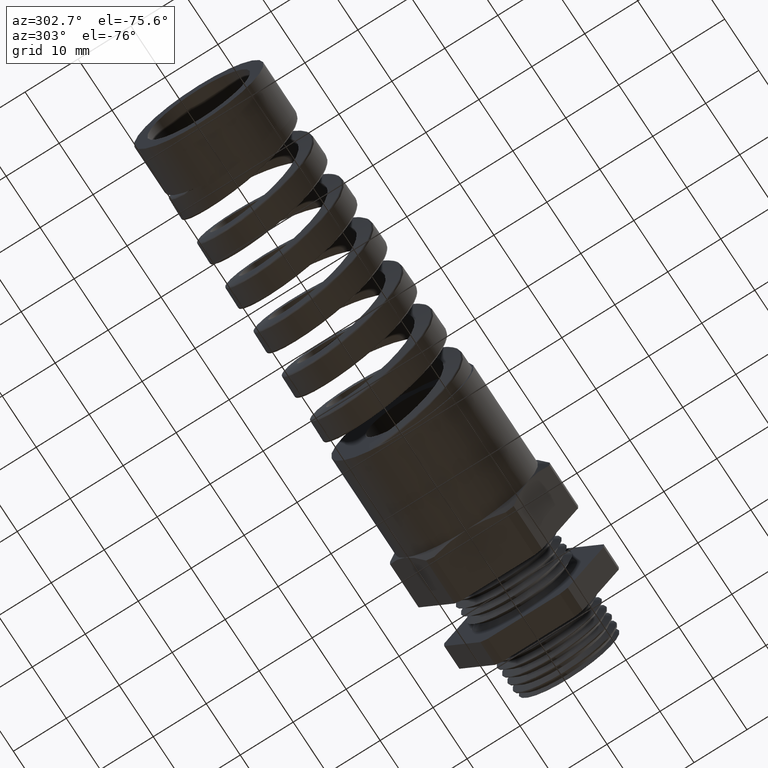
[diagram: clean part render]
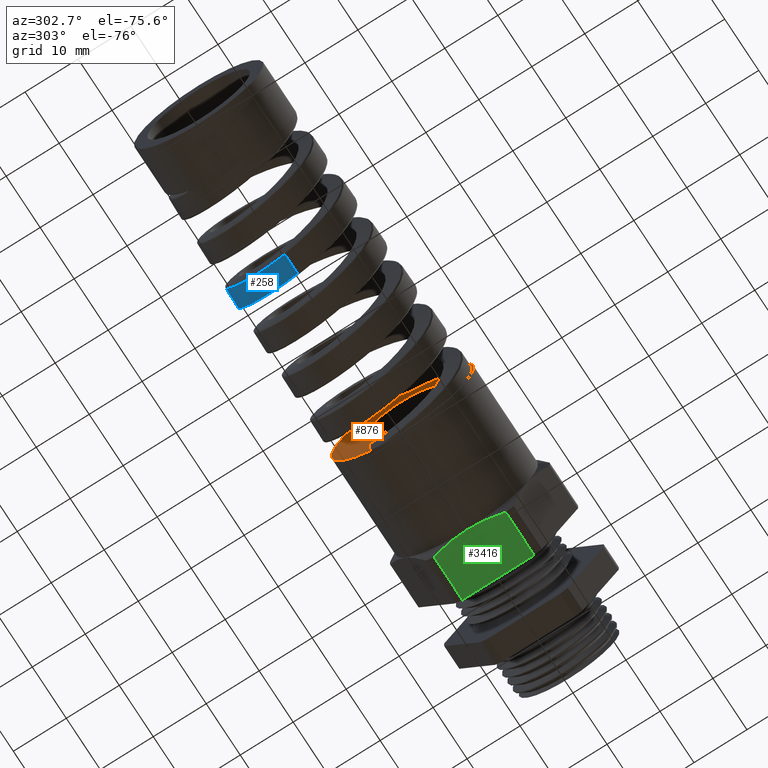
[diagram: same view with three faces highlighted in distinct colors, each labeled with its STEP entity id]
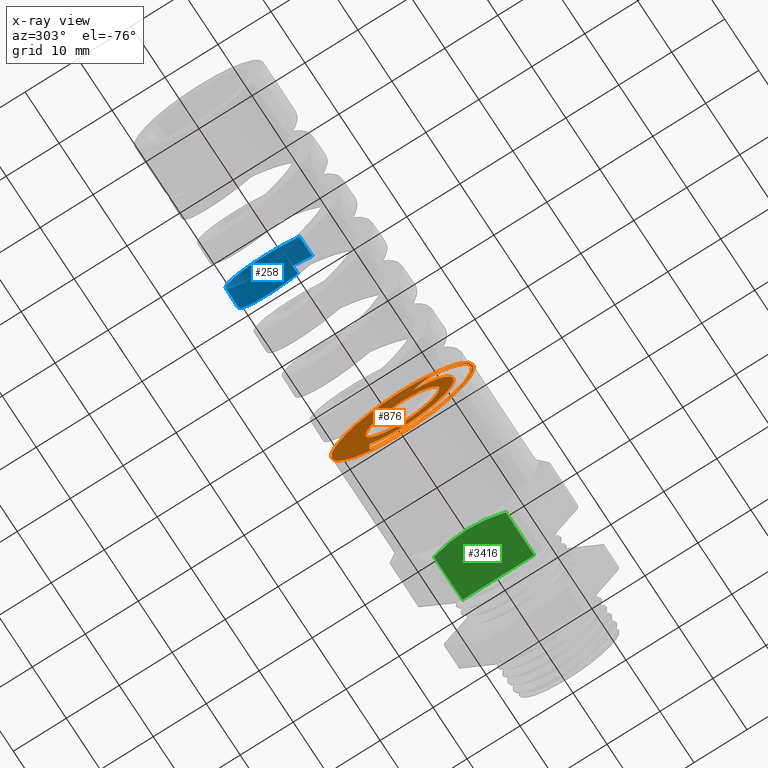
[diagram: x-ray of the same camera — body ghosted, the three highlighted faces saturated]
A machine part, auxiliary view with three faces highlighted in distinct colors.
The next image is the same camera in x-ray (body ghosted, the three faces saturated) — at least one of them is partly hidden behind the body in this view.
Their STEP definitions:

[orange] entity #876 — the highlighted planar face has unit normal (-1, 0, 0).
#290 = VERTEX_POINT ( 'NONE', #1920 ) ;
#293 = EDGE_CURVE ( 'NONE', #290, #7262, #1989, .T. ) ;
#414 = VERTEX_POINT ( 'NONE', #2909 ) ;
#417 = EDGE_CURVE ( 'NONE', #418, #414, #2934, .T. ) ;
#418 = VERTEX_POINT ( 'NONE', #2929 ) ;
#592 = EDGE_CURVE ( 'NONE', #3433, #1147, #3796, .T. ) ;
#648 = EDGE_CURVE ( 'NONE', #1116, #1114, #3854, .T. ) ;
#797 = EDGE_LOOP ( 'NONE', ( #798, #799 ) ) ;
#798 = ORIENTED_EDGE ( 'NONE', *, *, #1105, .T. ) ;
#799 = ORIENTED_EDGE ( 'NONE', *, *, #648, .T. ) ;
#800 = EDGE_LOOP ( 'NONE', ( #801, #804, #861, #862, #865, #868, #870, #871 ) ) ;
#801 = ORIENTED_EDGE ( 'NONE', *, *, #802, .F. ) ;
#802 = EDGE_CURVE ( 'NONE', #803, #7268, #4034, .T. ) ;
#803 = VERTEX_POINT ( 'NONE', #4033 ) ;
#804 = ORIENTED_EDGE ( 'NONE', *, *, #805, .T. ) ;
#805 = EDGE_CURVE ( 'NONE', #803, #418, #4086, .T. ) ;
#817 = EDGE_LOOP ( 'NONE', ( #877, #878 ) ) ;
#861 = ORIENTED_EDGE ( 'NONE', *, *, #417, .T. ) ;
#862 = ORIENTED_EDGE ( 'NONE', *, *, #863, .T. ) ;
#863 = EDGE_CURVE ( 'NONE', #414, #864, #4593, .T. ) ;
#864 = VERTEX_POINT ( 'NONE', #4588 ) ;
#865 = ORIENTED_EDGE ( 'NONE', *, *, #866, .T. ) ;
#866 = EDGE_CURVE ( 'NONE', #864, #867, #4586, .T. ) ;
#867 = VERTEX_POINT ( 'NONE', #4587 ) ;
#868 = ORIENTED_EDGE ( 'NONE', *, *, #869, .F. ) ;
#869 = EDGE_CURVE ( 'NONE', #290, #867, #4585, .T. ) ;
#870 = ORIENTED_EDGE ( 'NONE', *, *, #293, .T. ) ;
#871 = ORIENTED_EDGE ( 'NONE', *, *, #7269, .T. ) ;
#876 = ADVANCED_FACE ( 'NONE', ( #4623, #4622, #4621 ), #4618, .T. ) ;
#877 = ORIENTED_EDGE ( 'NONE', *, *, #592, .F. ) ;
#878 = ORIENTED_EDGE ( 'NONE', *, *, #3426, .F. ) ;
#1105 = EDGE_CURVE ( 'NONE', #1114, #1116, #10179, .T. ) ;
#1114 = VERTEX_POINT ( 'NONE', #10152 ) ;
#1116 = VERTEX_POINT ( 'NONE', #10151 ) ;
#1147 = VERTEX_POINT ( 'NONE', #10183 ) ;
#1920 = CARTESIAN_POINT ( 'NONE',  ( -1.581476290660619900, 0.2439768108765365500, -0.2939833847127876800 ) ) ;
#1976 = DIRECTION ( 'NONE',  ( 0.0000000000000000000, 0.0000000000000000000, 1.000000000000000000 ) ) ;
#1986 = DIRECTION ( 'NONE',  ( -1.000000000000000000, 0.0000000000000000000, 0.0000000000000000000 ) ) ;
#1987 = CARTESIAN_POINT ( 'NONE',  ( -1.581476290660620300, 0.0000000000000000000, 0.0000000000000000000 ) ) ;
#1988 = AXIS2_PLACEMENT_3D ( 'NONE', #1987, #1986, #1976 ) ;
#1989 = CIRCLE ( 'NONE', #1988, 0.3820352270837504300 ) ;
#2909 = CARTESIAN_POINT ( 'NONE',  ( -1.581476290660620300, 0.0000000000000000000, -0.5170138455414643500 ) ) ;
#2929 = CARTESIAN_POINT ( 'NONE',  ( -1.581476290660620300, -0.2878362359245722500, 0.4294806372473002900 ) ) ;
#2930 = DIRECTION ( 'NONE',  ( 0.0000000000000000000, 0.0000000000000000000, 1.000000000000000000 ) ) ;
#2931 = DIRECTION ( 'NONE',  ( 1.000000000000000000, 0.0000000000000000000, 0.0000000000000000000 ) ) ;
#2932 = CARTESIAN_POINT ( 'NONE',  ( -1.581476290660620300, 0.0000000000000000000, 0.0000000000000000000 ) ) ;
#2933 = AXIS2_PLACEMENT_3D ( 'NONE', #2932, #2931, #2930 ) ;
#2934 = CIRCLE ( 'NONE', #2933, 0.5170138455414643500 ) ;
#3426 = EDGE_CURVE ( 'NONE', #1147, #3433, #7901, .T. ) ;
#3433 = VERTEX_POINT ( 'NONE', #7887 ) ;
#3792 = DIRECTION ( 'NONE',  ( 0.0000000000000000000, 0.0000000000000000000, 1.000000000000000000 ) ) ;
#3793 = DIRECTION ( 'NONE',  ( -1.000000000000000000, 0.0000000000000000000, 0.0000000000000000000 ) ) ;
#3794 = CARTESIAN_POINT ( 'NONE',  ( -1.581476290660620300, 0.0000000000000000000, 0.0000000000000000000 ) ) ;
#3795 = AXIS2_PLACEMENT_3D ( 'NONE', #3794, #3793, #3792 ) ;
#3796 = CIRCLE ( 'NONE', #3795, 0.2750000000000000200 ) ;
#3850 = DIRECTION ( 'NONE',  ( 0.0000000000000000000, 0.0000000000000000000, 1.000000000000000000 ) ) ;
#3851 = DIRECTION ( 'NONE',  ( -1.000000000000000000, 0.0000000000000000000, 0.0000000000000000000 ) ) ;
#3852 = CARTESIAN_POINT ( 'NONE',  ( -1.581476290660620300, 0.0000000000000000000, 0.0000000000000000000 ) ) ;
#3853 = AXIS2_PLACEMENT_3D ( 'NONE', #3852, #3851, #3850 ) ;
#3854 = CIRCLE ( 'NONE', #3853, 0.5299999999999999200 ) ;
#4027 = CARTESIAN_POINT ( 'NONE',  ( -1.581476290660620300, -0.08011283778685926400, 0.3735409588715394900 ) ) ;
#4028 = CARTESIAN_POINT ( 'NONE',  ( -1.581476290660619900, -0.09805496664336703400, 0.3924235497094827300 ) ) ;
#4029 = CARTESIAN_POINT ( 'NONE',  ( -1.581476290660620100, -0.1174194812276809200, 0.4093455164549105200 ) ) ;
#4030 = CARTESIAN_POINT ( 'NONE',  ( -1.581476290660619900, -0.1586306682812588500, 0.4397680302453812500 ) ) ;
#4031 = CARTESIAN_POINT ( 'NONE',  ( -1.581476290660620600, -0.1804812060211865900, 0.4532632493806746400 ) ) ;
#4032 = CARTESIAN_POINT ( 'NONE',  ( -1.581476290660620300, -0.2035264114715549200, 0.4651117321561662500 ) ) ;
#4033 = CARTESIAN_POINT ( 'NONE',  ( -1.581476290660620300, -0.2035264114715549200, 0.4651117321561662500 ) ) ;
#4034 = B_SPLINE_CURVE_WITH_KNOTS ( 'NONE', 3,
 ( #4032, #4031, #4030, #4029, #4028, #4027 ),
 .UNSPECIFIED., .F., .F.,
 ( 4, 2, 4 ),
 ( 0.0003023189019073264800, 0.002253883634336859000, 0.004205448366766391200 ),
 .UNSPECIFIED. ) ;
#4069 = CARTESIAN_POINT ( 'NONE',  ( -1.581476290660620300, -0.2878362359245722500, 0.4294806372473002900 ) ) ;
#4070 = CARTESIAN_POINT ( 'NONE',  ( -1.581476290660619900, -0.2749755471508566500, 0.4380998203423221400 ) ) ;
#4071 = CARTESIAN_POINT ( 'NONE',  ( -1.581476290660620600, -0.2615777167441957800, 0.4456901387269754900 ) ) ;
#4072 = CARTESIAN_POINT ( 'NONE',  ( -1.581476290660620300, -0.2406053994859072800, 0.4553985078565002100 ) ) ;
#4073 = CARTESIAN_POINT ( 'NONE',  ( -1.581476290660621200, -0.2334437524205655900, 0.4583694052105787300 ) ) ;
#4074 = CARTESIAN_POINT ( 'NONE',  ( -1.581476290660620100, -0.2224599632310773900, 0.4621299269364348400 ) ) ;
#4075 = CARTESIAN_POINT ( 'NONE',  ( -1.581476290660620300, -0.2187658228172727500, 0.4632712828768676400 ) ) ;
#4076 = CARTESIAN_POINT ( 'NONE',  ( -1.581476290660620300, -0.2131233264642752900, 0.4646378106417991000 ) ) ;
#4077 = CARTESIAN_POINT ( 'NONE',  ( -1.581476290660620100, -0.2112182180343280000, 0.4650413015481507100 ) ) ;
#4078 = CARTESIAN_POINT ( 'NONE',  ( -1.581476290660620300, -0.2083318138519092100, 0.4654355307481730100 ) ) ;
#4079 = CARTESIAN_POINT ( 'NONE',  ( -1.581476290660620600, -0.2073672283011685800, 0.4655330223194320500 ) ) ;
#4080 = CARTESIAN_POINT ( 'NONE',  ( -1.581476290660620300, -0.2054261782288179000, 0.4655636064762560500 ) ) ;
#4081 = CARTESIAN_POINT ( 'NONE',  ( -1.581476290660619500, -0.2044146998008145000, 0.4655684375212607600 ) ) ;
#4082 = CARTESIAN_POINT ( 'NONE',  ( -1.581476290660620300, -0.2035264114715549200, 0.4651117321561662500 ) ) ;
#4086 = B_SPLINE_CURVE_WITH_KNOTS ( 'NONE', 3,
 ( #4082, #4081, #4080, #4079, #4078, #4077, #4076, #4075, #4074, #4073, #4072, #4071, #4070, #4069 ),
 .UNSPECIFIED., .F., .F.,
 ( 4, 2, 2, 2, 2, 2, 4 ),
 ( 2.609303217328850300E-017, 7.404749739776534100E-005, 0.0001480949947955046100, 0.0002961899895909805400, 0.0005923799791819312600, 0.001184759958363834800, 0.002369519916727640000 ),
 .UNSPECIFIED. ) ;
#4565 = CARTESIAN_POINT ( 'NONE',  ( -1.581476290660620600, 0.2445930851603495500, -0.4226412966956376000 ) ) ;
#4566 = CARTESIAN_POINT ( 'NONE',  ( -1.581476290660620300, 0.2476079300222934800, -0.3967413439239729200 ) ) ;
#4567 = CARTESIAN_POINT ( 'NONE',  ( -1.581476290660621000, 0.2491756876844468400, -0.3452950546097943700 ) ) ;
#4568 = CARTESIAN_POINT ( 'NONE',  ( -1.581476290660619000, 0.2477838272508631800, -0.3196151953929073400 ) ) ;
#4569 = CARTESIAN_POINT ( 'NONE',  ( -1.581476290660619900, 0.2439768108765365500, -0.2939833847127876800 ) ) ;
#4570 = CARTESIAN_POINT ( 'NONE',  ( -1.581476290660620600, 0.2395947729159085500, -0.4479899465159873400 ) ) ;
#4571 = CARTESIAN_POINT ( 'NONE',  ( -1.581476290660620300, 0.2393978166124937900, -0.4489887989527761000 ) ) ;
#4572 = CARTESIAN_POINT ( 'NONE',  ( -1.581476290660620300, 0.2387443856755272800, -0.4497935887819438600 ) ) ;
#4573 = CARTESIAN_POINT ( 'NONE',  ( -1.581476290660620100, 0.2374701702775427200, -0.4513323751275263300 ) ) ;
#4574 = CARTESIAN_POINT ( 'NONE',  ( -1.581476290660620600, 0.2367668135720901700, -0.4520481940536040800 ) ) ;
#4575 = CARTESIAN_POINT ( 'NONE',  ( -1.581476290660620300, 0.2345930094758134100, -0.4541116560727979100 ) ) ;
#4576 = CARTESIAN_POINT ( 'NONE',  ( -1.581476290660621000, 0.2330440772027471700, -0.4553825208635158800 ) ) ;
#4577 = CARTESIAN_POINT ( 'NONE',  ( -1.581476290660620300, 0.2282981278049989700, -0.4590447653421673200 ) ) ;
#4578 = CARTESIAN_POINT ( 'NONE',  ( -1.581476290660620100, 0.2249812029482286800, -0.4612857056665591300 ) ) ;
#4579 = CARTESIAN_POINT ( 'NONE',  ( -1.581476290660620600, 0.2148458321704201900, -0.4676898152625083000 ) ) ;
#4580 = CARTESIAN_POINT ( 'NONE',  ( -1.581476290660620300, 0.2078214009036204200, -0.4715219357451060400 ) ) ;
#4581 = CARTESIAN_POINT ( 'NONE',  ( -1.581476290660620100, 0.1863209287074172900, -0.4821457008317268100 ) ) ;
#4582 = CARTESIAN_POINT ( 'NONE',  ( -1.581476290660620300, 0.1714300096581261600, -0.4880273622731625700 ) ) ;
#4583 = CARTESIAN_POINT ( 'NONE',  ( -1.581476290660620300, 0.1561883609519543200, -0.4928574970361262500 ) ) ;
#4585 = B_SPLINE_CURVE_WITH_KNOTS ( 'NONE', 3,
 ( #4569, #4568, #4567, #4566, #4565, #4625 ),
 .UNSPECIFIED., .F., .F.,
 ( 4, 2, 4 ),
 ( 0.0001882138518751078700, 0.002146741590613274600, 0.004105269329351441900 ),
 .UNSPECIFIED. ) ;
#4586 = B_SPLINE_CURVE_WITH_KNOTS ( 'NONE', 3,
 ( #4583, #4582, #4581, #4580, #4579, #4578, #4577, #4576, #4575, #4574, #4573, #4572, #4571, #4570 ),
 .UNSPECIFIED., .F., .F.,
 ( 4, 2, 2, 2, 2, 2, 4 ),
 ( 0.0000000000000000000, 0.001217786265975207600, 0.001826679398962811500, 0.002131125965456612400, 0.002283349248703513600, 0.002359460890326963900, 0.002435572531950414300 ),
 .UNSPECIFIED. ) ;
#4587 = CARTESIAN_POINT ( 'NONE',  ( -1.581476290660620600, 0.2395947729159085500, -0.4479899465159873400 ) ) ;
#4588 = CARTESIAN_POINT ( 'NONE',  ( -1.581476290660620300, 0.1561883609519543200, -0.4928574970361262500 ) ) ;
#4589 = DIRECTION ( 'NONE',  ( 0.0000000000000000000, 0.0000000000000000000, 1.000000000000000000 ) ) ;
#4590 = DIRECTION ( 'NONE',  ( 1.000000000000000000, 0.0000000000000000000, 0.0000000000000000000 ) ) ;
#4591 = CARTESIAN_POINT ( 'NONE',  ( -1.581476290660620300, 0.0000000000000000000, 0.0000000000000000000 ) ) ;
#4592 = AXIS2_PLACEMENT_3D ( 'NONE', #4591, #4590, #4589 ) ;
#4593 = CIRCLE ( 'NONE', #4592, 0.5170138455414643500 ) ;
#4617 = AXIS2_PLACEMENT_3D ( 'NONE', #7137, #7138, #7139 ) ;
#4618 = PLANE ( 'NONE',  #4617 ) ;
#4621 = FACE_BOUND ( 'NONE', #800, .T. ) ;
#4622 = FACE_OUTER_BOUND ( 'NONE', #797, .T. ) ;
#4623 = FACE_BOUND ( 'NONE', #817, .T. ) ;
#4625 = CARTESIAN_POINT ( 'NONE',  ( -1.581476290660620600, 0.2395947729159085500, -0.4479899465159873400 ) ) ;
#7137 = CARTESIAN_POINT ( 'NONE',  ( -1.581476290660620300, 0.0000000000000000000, 0.0000000000000000000 ) ) ;
#7138 = DIRECTION ( 'NONE',  ( -1.000000000000000000, 0.0000000000000000000, 0.0000000000000000000 ) ) ;
#7139 = DIRECTION ( 'NONE',  ( 0.0000000000000000000, 0.0000000000000000000, 1.000000000000000000 ) ) ;
#7262 = VERTEX_POINT ( 'NONE', #10575 ) ;
#7268 = VERTEX_POINT ( 'NONE', #10574 ) ;
#7269 = EDGE_CURVE ( 'NONE', #7262, #7268, #10593, .T. ) ;
#7887 = CARTESIAN_POINT ( 'NONE',  ( -1.581476290660620300, 0.0000000000000000000, 0.2750000000000000200 ) ) ;
#7897 = DIRECTION ( 'NONE',  ( 0.0000000000000000000, 0.0000000000000000000, 1.000000000000000000 ) ) ;
#7898 = DIRECTION ( 'NONE',  ( -1.000000000000000000, 0.0000000000000000000, 0.0000000000000000000 ) ) ;
#7899 = CARTESIAN_POINT ( 'NONE',  ( -1.581476290660620300, 0.0000000000000000000, 0.0000000000000000000 ) ) ;
#7900 = AXIS2_PLACEMENT_3D ( 'NONE', #7899, #7898, #7897 ) ;
#7901 = CIRCLE ( 'NONE', #7900, 0.2750000000000000200 ) ;
#10118 = CARTESIAN_POINT ( 'NONE',  ( -1.581476290660620300, 0.0000000000000000000, 0.0000000000000000000 ) ) ;
#10151 = CARTESIAN_POINT ( 'NONE',  ( -1.581476290660620300, 6.490628035480972400E-017, -0.5299999999999999200 ) ) ;
#10152 = CARTESIAN_POINT ( 'NONE',  ( -1.581476290660620300, 0.0000000000000000000, 0.5299999999999999200 ) ) ;
#10176 = DIRECTION ( 'NONE',  ( 0.0000000000000000000, 0.0000000000000000000, 1.000000000000000000 ) ) ;
#10177 = DIRECTION ( 'NONE',  ( -1.000000000000000000, 0.0000000000000000000, 0.0000000000000000000 ) ) ;
#10178 = AXIS2_PLACEMENT_3D ( 'NONE', #10118, #10177, #10176 ) ;
#10179 = CIRCLE ( 'NONE', #10178, 0.5299999999999999200 ) ;
#10183 = CARTESIAN_POINT ( 'NONE',  ( -1.581476290660620300, 3.367778697655221300E-017, -0.2750000000000000200 ) ) ;
#10574 = CARTESIAN_POINT ( 'NONE',  ( -1.581476290660620300, -0.08011283778685926400, 0.3735409588715394900 ) ) ;
#10575 = CARTESIAN_POINT ( 'NONE',  ( -1.581476290660620300, 0.0000000000000000000, -0.3820352270837504300 ) ) ;
#10589 = DIRECTION ( 'NONE',  ( 0.0000000000000000000, 0.0000000000000000000, 1.000000000000000000 ) ) ;
#10590 = DIRECTION ( 'NONE',  ( -1.000000000000000000, 0.0000000000000000000, 0.0000000000000000000 ) ) ;
#10591 = CARTESIAN_POINT ( 'NONE',  ( -1.581476290660620300, 0.0000000000000000000, 0.0000000000000000000 ) ) ;
#10592 = AXIS2_PLACEMENT_3D ( 'NONE', #10591, #10590, #10589 ) ;
#10593 = CIRCLE ( 'NONE', #10592, 0.3820352270837504300 ) ;

[blue] entity #258 — the highlighted conical surface has half-angle 1 deg.
#258 = ADVANCED_FACE ( 'NONE', ( #1611 ), #1610, .T. ) ;
#259 = EDGE_LOOP ( 'NONE', ( #260, #264, #267, #350 ) ) ;
#260 = ORIENTED_EDGE ( 'NONE', *, *, #261, .T. ) ;
#261 = EDGE_CURVE ( 'NONE', #262, #263, #1603, .T. ) ;
#262 = VERTEX_POINT ( 'NONE', #1604 ) ;
#263 = VERTEX_POINT ( 'NONE', #1605 ) ;
#264 = ORIENTED_EDGE ( 'NONE', *, *, #265, .T. ) ;
#265 = EDGE_CURVE ( 'NONE', #263, #266, #1717, .T. ) ;
#266 = VERTEX_POINT ( 'NONE', #1713 ) ;
#267 = ORIENTED_EDGE ( 'NONE', *, *, #268, .T. ) ;
#268 = EDGE_CURVE ( 'NONE', #266, #349, #1712, .T. ) ;
#349 = VERTEX_POINT ( 'NONE', #2381 ) ;
#350 = ORIENTED_EDGE ( 'NONE', *, *, #351, .F. ) ;
#351 = EDGE_CURVE ( 'NONE', #262, #349, #2380, .T. ) ;
#1599 = CARTESIAN_POINT ( 'NONE',  ( -2.935355800556057800, 0.06493473715926385800, -0.4893609792729040600 ) ) ;
#1600 = CARTESIAN_POINT ( 'NONE',  ( -2.938889006635846600, 0.03252430304678628800, -0.4925159952926062000 ) ) ;
#1601 = CARTESIAN_POINT ( 'NONE',  ( -2.940660043602726100, 0.01618233978557102200, -0.4932892048844811400 ) ) ;
#1602 = CARTESIAN_POINT ( 'NONE',  ( -2.942413571626061800, 4.861763695744037300E-016, -0.4932585969389803300 ) ) ;
#1603 = B_SPLINE_CURVE_WITH_KNOTS ( 'NONE', 3,
 ( #1602, #1601, #1600, #1599, #1678, #1677, #1676, #1675, #1674, #1673, #1672, #1671, #1670, #1669, #1668, #1667, #1666, #1665, #1664, #1663, #1662, #1661, #1660, #1659, #1658, #1657, #1656, #1655, #1654, #1653, #1652, #1651, #1650, #1649, #1648, #1647, #1646, #1645, #1644, #1643, #1642, #1641, #1640, #1639, #1638, #1637, #1636, #1635, #1634, #1633, #1632 ),
 .UNSPECIFIED., .F., .F.,
 ( 4, 2, 2, 2, 2, 2, 2, 2, 2, 2, 2, 2, 2, 2, 2, 2, 2, 2, 2, 2, 2, 2, 2, 1, 2, 4 ),
 ( 0.1503022036203607900, 0.1515475829473078300, 0.1527929622742548700, 0.1552837209281489600, 0.1565291002550960000, 0.1577744795820430500, 0.1590198589089900900, 0.1602652382359371400, 0.1627559968898312500, 0.1640013762167782900, 0.1652467555437253400, 0.1677375141976194500, 0.1689828935245665000, 0.1702282728515135400, 0.1727190315054076300, 0.1752097901593017400, 0.1764551694862487900, 0.1777005488131958600, 0.1801913074670899500, 0.1814366867940369900, 0.1826820661209840300, 0.1851728247748781200, 0.1864182041018251900, 0.1876635834287722300, 0.1889089627557192800, 0.1901543420826663200 ),
 .UNSPECIFIED. ) ;
#1604 = CARTESIAN_POINT ( 'NONE',  ( -2.942413571626061800, 4.861763695744037300E-016, -0.4932585969389803300 ) ) ;
#1605 = CARTESIAN_POINT ( 'NONE',  ( -2.774348163852589500, 6.567034597047728300E-013, 0.4961921895438537500 ) ) ;
#1606 = DIRECTION ( 'NONE',  ( 0.0000000000000000000, 0.0000000000000000000, -1.000000000000000000 ) ) ;
#1607 = DIRECTION ( 'NONE',  ( 1.000000000000000000, 0.0000000000000000000, 0.0000000000000000000 ) ) ;
#1608 = CARTESIAN_POINT ( 'NONE',  ( -0.8375000000000000200, 0.0000000000000000000, 0.0000000000000000000 ) ) ;
#1609 = AXIS2_PLACEMENT_3D ( 'NONE', #1608, #1607, #1606 ) ;
#1610 = CONICAL_SURFACE ( 'NONE', #1609, 0.5300000000000000300, 0.01745329251994346200 ) ;
#1611 = FACE_OUTER_BOUND ( 'NONE', #259, .T. ) ;
#1632 = CARTESIAN_POINT ( 'NONE',  ( -2.774348163852589500, 6.567034597047728300E-013, 0.4961921895438537500 ) ) ;
#1633 = CARTESIAN_POINT ( 'NONE',  ( -2.776108689607815100, 0.01630676458865424500, 0.4961614594524667000 ) ) ;
#1634 = CARTESIAN_POINT ( 'NONE',  ( -2.777867518772785700, 0.03259861442799037000, 0.4953226093827390900 ) ) ;
#1635 = CARTESIAN_POINT ( 'NONE',  ( -2.781354140345286400, 0.06477395360083589000, 0.4920885158373994300 ) ) ;
#1636 = CARTESIAN_POINT ( 'NONE',  ( -2.784824358485947100, 0.09665988672417152900, 0.4872984240105564500 ) ) ;
#1637 = CARTESIAN_POINT ( 'NONE',  ( -2.788297718970027100, 0.1279690790867277800, 0.4794285694685143700 ) ) ;
#1638 = CARTESIAN_POINT ( 'NONE',  ( -2.791790924234470900, 0.1589827400088259000, 0.4699913301821733200 ) ) ;
#1639 = CARTESIAN_POINT ( 'NONE',  ( -2.793556938003386700, 0.1744215361386750600, 0.4644514738486166200 ) ) ;
#1640 = CARTESIAN_POINT ( 'NONE',  ( -2.798814764957544600, 0.2194315171973594800, 0.4457452012924525400 ) ) ;
#1641 = CARTESIAN_POINT ( 'NONE',  ( -2.802281556017595800, 0.2478446227266235300, 0.4305098185438461800 ) ) ;
#1642 = CARTESIAN_POINT ( 'NONE',  ( -2.807516545591687100, 0.2881094892046431300, 0.4035914385529646400 ) ) ;
#1643 = CARTESIAN_POINT ( 'NONE',  ( -2.809267041314231300, 0.3011359496892742100, 0.3939363652755850700 ) ) ;
#1644 = CARTESIAN_POINT ( 'NONE',  ( -2.812791844022951300, 0.3263704542741637800, 0.3732158468516765200 ) ) ;
#1645 = CARTESIAN_POINT ( 'NONE',  ( -2.814545035582239200, 0.3384169897125414200, 0.3622788315694958600 ) ) ;
#1646 = CARTESIAN_POINT ( 'NONE',  ( -2.819773846342025400, 0.3726810616247439600, 0.3279844119066646600 ) ) ;
#1647 = CARTESIAN_POINT ( 'NONE',  ( -2.823232413209170400, 0.3931377796049696500, 0.3030775491388493800 ) ) ;
#1648 = CARTESIAN_POINT ( 'NONE',  ( -2.828487487020772600, 0.4201928242932369000, 0.2626231769377239100 ) ) ;
#1649 = CARTESIAN_POINT ( 'NONE',  ( -2.830258471954290000, 0.4286321347836153400, 0.2485500167503133800 ) ) ;
#1650 = CARTESIAN_POINT ( 'NONE',  ( -2.833768517879629900, 0.4439339560087503500, 0.2199194906144728300 ) ) ;
#1651 = CARTESIAN_POINT ( 'NONE',  ( -2.835514226909781900, 0.4508369242292321600, 0.2053146045696566400 ) ) ;
#1652 = CARTESIAN_POINT ( 'NONE',  ( -2.840745692800835000, 0.4693483108129710700, 0.1606515369103508600 ) ) ;
#1653 = CARTESIAN_POINT ( 'NONE',  ( -2.844223506396981600, 0.4787845670092274500, 0.1297338439244321900 ) ) ;
#1654 = CARTESIAN_POINT ( 'NONE',  ( -2.851280568262861200, 0.4915634867593755000, 0.06564253680516303500 ) ) ;
#1655 = CARTESIAN_POINT ( 'NONE',  ( -2.854750102871710400, 0.4947049826169287500, 0.03349630917330425500 ) ) ;
#1656 = CARTESIAN_POINT ( 'NONE',  ( -2.859976574622884000, 0.4947370215255012500, -0.01485631088416988400 ) ) ;
#1657 = CARTESIAN_POINT ( 'NONE',  ( -2.861722213634986500, 0.4939619844813109000, -0.03099625191679396600 ) ) ;
#1658 = CARTESIAN_POINT ( 'NONE',  ( -2.865237452583270900, 0.4908045131462106500, -0.06332013191165357400 ) ) ;
#1659 = CARTESIAN_POINT ( 'NONE',  ( -2.867012360697061000, 0.4884043211879737800, -0.07955067904616382200 ) ) ;
#1660 = CARTESIAN_POINT ( 'NONE',  ( -2.872281926666633700, 0.4789247775305362500, -0.1272633440518388400 ) ) ;
#1661 = CARTESIAN_POINT ( 'NONE',  ( -2.875753735986332800, 0.4695755013277813100, -0.1581052852329150600 ) ) ;
#1662 = CARTESIAN_POINT ( 'NONE',  ( -2.880996368489056300, 0.4510509623835071100, -0.2029214185075531900 ) ) ;
#1663 = CARTESIAN_POINT ( 'NONE',  ( -2.882755692437091200, 0.4440970884192457200, -0.2176610943516186200 ) ) ;
#1664 = CARTESIAN_POINT ( 'NONE',  ( -2.886283067335473400, 0.4287241464572106300, -0.2464413060496944700 ) ) ;
#1665 = CARTESIAN_POINT ( 'NONE',  ( -2.888033465094332500, 0.4203871233533397200, -0.2603392568395859800 ) ) ;
#1666 = CARTESIAN_POINT ( 'NONE',  ( -2.893272799488973300, 0.3934873285007116600, -0.3006006012317835000 ) ) ;
#1667 = CARTESIAN_POINT ( 'NONE',  ( -2.896750369896222900, 0.3730534785577178700, -0.3255448193559680200 ) ) ;
#1668 = CARTESIAN_POINT ( 'NONE',  ( -2.902039866081271000, 0.3385740633496471300, -0.3600440291361602900 ) ) ;
#1669 = CARTESIAN_POINT ( 'NONE',  ( -2.903815725833867900, 0.3264260559712851600, -0.3710492771851572300 ) ) ;
#1670 = CARTESIAN_POINT ( 'NONE',  ( -2.907326522397559300, 0.3013745981390084100, -0.3915920759606511500 ) ) ;
#1671 = CARTESIAN_POINT ( 'NONE',  ( -2.909071194379841500, 0.2884084664658963000, -0.4011965437976170400 ) ) ;
#1672 = CARTESIAN_POINT ( 'NONE',  ( -2.912558859715237900, 0.2616110358622783000, -0.4190914606844377000 ) ) ;
#1673 = CARTESIAN_POINT ( 'NONE',  ( -2.914301599344288000, 0.2477797103145311400, -0.4273819195078555300 ) ) ;
#1674 = CARTESIAN_POINT ( 'NONE',  ( -2.917803336158616200, 0.2192426447402975000, -0.4426312206680234100 ) ) ;
#1675 = CARTESIAN_POINT ( 'NONE',  ( -2.919570823076965900, 0.2044638871874712400, -0.4496191884119812900 ) ) ;
#1676 = CARTESIAN_POINT ( 'NONE',  ( -2.924864184590114200, 0.1593006637988619000, -0.4682851925373589000 ) ) ;
#1677 = CARTESIAN_POINT ( 'NONE',  ( -2.928347249587400600, 0.1284101329589903100, -0.4775957434004251000 ) ) ;
#1678 = CARTESIAN_POINT ( 'NONE',  ( -2.933600340033303900, 0.08094570233200630600, -0.4869946153773879200 ) ) ;
#1679 = CARTESIAN_POINT ( 'NONE',  ( -2.744729061005136900, 0.3952918966537339300, -0.3025555728325150000 ) ) ;
#1680 = CARTESIAN_POINT ( 'NONE',  ( -2.739415115131641300, 0.4226299266159407900, -0.2616581831605669900 ) ) ;
#1681 = CARTESIAN_POINT ( 'NONE',  ( -2.737647989563756200, 0.4310506962317947100, -0.2475929795115565700 ) ) ;
#1682 = CARTESIAN_POINT ( 'NONE',  ( -2.734141033468893100, 0.4463650016198493200, -0.2189203089986330700 ) ) ;
#1683 = CARTESIAN_POINT ( 'NONE',  ( -2.730649423738387100, 0.4602140097815022900, -0.1896134838938602400 ) ) ;
#1684 = CARTESIAN_POINT ( 'NONE',  ( -2.727151704070717400, 0.4711604456734223600, -0.1590547886653053400 ) ) ;
#1685 = CARTESIAN_POINT ( 'NONE',  ( -2.723632908701778500, 0.4806280921705000100, -0.1278604176308285900 ) ) ;
#1686 = CARTESIAN_POINT ( 'NONE',  ( -2.721853760636086000, 0.4846345590166101200, -0.1118606704593008800 ) ) ;
#1687 = CARTESIAN_POINT ( 'NONE',  ( -2.716560889374224800, 0.4941692489542768300, -0.06381179917320538300 ) ) ;
#1688 = CARTESIAN_POINT ( 'NONE',  ( -2.713071455077920500, 0.4973205704367529300, -0.03155601670527705100 ) ) ;
#1689 = CARTESIAN_POINT ( 'NONE',  ( -2.706063435015824100, 0.4973236345802735700, 0.03338270447537337200 ) ) ;
#1690 = CARTESIAN_POINT ( 'NONE',  ( -2.702512019203388200, 0.4940702308779081300, 0.06635058484019461200 ) ) ;
#1691 = CARTESIAN_POINT ( 'NONE',  ( -2.695512344724163300, 0.4813656527674196100, 0.1300633388519174500 ) ) ;
#1692 = CARTESIAN_POINT ( 'NONE',  ( -2.692036064900163800, 0.4719680804580215200, 0.1610763071518894800 ) ) ;
#1693 = CARTESIAN_POINT ( 'NONE',  ( -2.686753468394794500, 0.4532457333895158500, 0.2063028761974962400 ) ) ;
#1694 = CARTESIAN_POINT ( 'NONE',  ( -2.684974264038704200, 0.4461913468264712700, 0.2212161985012607300 ) ) ;
#1695 = CARTESIAN_POINT ( 'NONE',  ( -2.681452108317196300, 0.4308054129396255400, 0.2499824543755698700 ) ) ;
#1696 = CARTESIAN_POINT ( 'NONE',  ( -2.679701346163500200, 0.4224517902667060400, 0.2639050180462856300 ) ) ;
#1697 = CARTESIAN_POINT ( 'NONE',  ( -2.674461124703252600, 0.3954501604320844200, 0.3043173314916932700 ) ) ;
#1698 = CARTESIAN_POINT ( 'NONE',  ( -2.670976478712419500, 0.3748401290892983700, 0.3295047817267673900 ) ) ;
#1699 = CARTESIAN_POINT ( 'NONE',  ( -2.663909688737154300, 0.3284230801054093300, 0.3759516940345863400 ) ) ;
#1700 = CARTESIAN_POINT ( 'NONE',  ( -2.660431260181794800, 0.3033128424327699000, 0.3965295599429498100 ) ) ;
#1701 = CARTESIAN_POINT ( 'NONE',  ( -2.655190789240895900, 0.2629130566974158300, 0.4235733832037775800 ) ) ;
#1702 = CARTESIAN_POINT ( 'NONE',  ( -2.653440456918146200, 0.2489873890004124500, 0.4319462270054162900 ) ) ;
#1703 = CARTESIAN_POINT ( 'NONE',  ( -2.649917656372188000, 0.2201977151367679700, 0.4473773741527328800 ) ) ;
#1704 = CARTESIAN_POINT ( 'NONE',  ( -2.648141230413810600, 0.2052958312865130500, 0.4544413359254998500 ) ) ;
#1705 = CARTESIAN_POINT ( 'NONE',  ( -2.642874812201708500, 0.1601415671255245500, 0.4731874851442193800 ) ) ;
#1706 = CARTESIAN_POINT ( 'NONE',  ( -2.639409411107109400, 0.1291465423659182400, 0.4826257885043613900 ) ) ;
#1707 = CARTESIAN_POINT ( 'NONE',  ( -2.634167497297893700, 0.08133828512434267100, 0.4922288005161958900 ) ) ;
#1708 = CARTESIAN_POINT ( 'NONE',  ( -2.632406883700895600, 0.06512441522276445100, 0.4946708100704080800 ) ) ;
#1709 = CARTESIAN_POINT ( 'NONE',  ( -2.628879782208412700, 0.03249480581862946400, 0.4979416563945278100 ) ) ;
#1710 = CARTESIAN_POINT ( 'NONE',  ( -2.627128906590042100, 0.01622510514976625900, 0.4987619112380601300 ) ) ;
#1711 = CARTESIAN_POINT ( 'NONE',  ( -2.625382030573645900, -1.420445311184053400E-013, 0.4987924030723432900 ) ) ;
#1712 = B_SPLINE_CURVE_WITH_KNOTS ( 'NONE', 3,
 ( #1711, #1710, #1709, #1708, #1707, #1706, #1705, #1704, #1703, #1702, #1701, #1700, #1699, #1698, #1697, #1696, #1695, #1694, #1693, #1692, #1691, #1690, #1689, #1688, #1687, #1686, #1685, #1684, #1683, #1682, #1681, #1680, #1679, #1758, #1757, #1756, #1755, #1754, #1753, #1752, #1751, #1750, #1749, #1748, #1747, #1746, #1745 ),
 .UNSPECIFIED., .F., .F.,
 ( 4, 2, 2, 2, 2, 2, 2, 2, 2, 2, 2, 2, 2, 2, 1, 2, 2, 2, 2, 2, 2, 2, 2, 4 ),
 ( 0.2533457944804851100, 0.2545986237092333100, 0.2558514529379815100, 0.2583571113954779000, 0.2596099406242261000, 0.2608627698529742400, 0.2633684283104706400, 0.2658740867679670300, 0.2671269159967152300, 0.2683797452254634300, 0.2708854036829597700, 0.2733910621404561600, 0.2758967205979525600, 0.2771495498267007600, 0.2784023790554489600, 0.2796552082841971500, 0.2809080375129453500, 0.2834136959704416900, 0.2846665251991898900, 0.2859193544279380900, 0.2884250128854344300, 0.2896778421141826300, 0.2909306713429308200, 0.2934363298004272200 ),
 .UNSPECIFIED. ) ;
#1713 = CARTESIAN_POINT ( 'NONE',  ( -2.625382030573645900, -1.420445311184053400E-013, 0.4987924030723432900 ) ) ;
#1714 = DIRECTION ( 'NONE',  ( 0.9998476951563912700, 2.137303368083811700E-018, 0.01745240643728367800 ) ) ;
#1715 = VECTOR ( 'NONE', #1714, 39.37007874015748100 ) ;
#1716 = CARTESIAN_POINT ( 'NONE',  ( -0.8375000000000000200, 6.490628035480972400E-017, 0.5300000000000000300 ) ) ;
#1717 = LINE ( 'NONE', #1716, #1715 ) ;
#1745 = CARTESIAN_POINT ( 'NONE',  ( -2.793973681807252300, -3.186274201363891400E-013, -0.4958496248537052100 ) ) ;
#1746 = CARTESIAN_POINT ( 'NONE',  ( -2.790433301547241600, 0.03274716727377265100, -0.4959114224210354700 ) ) ;
#1747 = CARTESIAN_POINT ( 'NONE',  ( -2.786941443773357300, 0.06502780963568097200, -0.4927594181258301300 ) ) ;
#1748 = CARTESIAN_POINT ( 'NONE',  ( -2.781672691261740200, 0.1127582083628958200, -0.4833511990846273700 ) ) ;
#1749 = CARTESIAN_POINT ( 'NONE',  ( -2.779911564555483900, 0.1285524577949976900, -0.4794295010273967300 ) ) ;
#1750 = CARTESIAN_POINT ( 'NONE',  ( -2.776364581493147500, 0.1599009124698960400, -0.4699696928265109100 ) ) ;
#1751 = CARTESIAN_POINT ( 'NONE',  ( -2.774586394868646000, 0.1753859244496015500, -0.4644426220388524500 ) ) ;
#1752 = CARTESIAN_POINT ( 'NONE',  ( -2.769309474190268600, 0.2204856104243385600, -0.4458009763884805400 ) ) ;
#1753 = CARTESIAN_POINT ( 'NONE',  ( -2.765829217398758200, 0.2490718418785824700, -0.4305554996101885700 ) ) ;
#1754 = CARTESIAN_POINT ( 'NONE',  ( -2.760554089099795000, 0.2897144561878339800, -0.4034555234910625100 ) ) ;
#1755 = CARTESIAN_POINT ( 'NONE',  ( -2.758776633675887900, 0.3029561041818457100, -0.3936513583396109600 ) ) ;
#1756 = CARTESIAN_POINT ( 'NONE',  ( -2.755242946748939200, 0.3282378147198356500, -0.3729141701567227400 ) ) ;
#1757 = CARTESIAN_POINT ( 'NONE',  ( -2.753487005222894800, 0.3402827129312521200, -0.3619925387459396700 ) ) ;
#1758 = CARTESIAN_POINT ( 'NONE',  ( -2.748226627846250800, 0.3746734017897648800, -0.3276128592566035500 ) ) ;
#2377 = DIRECTION ( 'NONE',  ( 0.9998476951563912700, 0.0000000000000000000, -0.01745240643728367800 ) ) ;
#2378 = VECTOR ( 'NONE', #2377, 39.37007874015748100 ) ;
#2379 = CARTESIAN_POINT ( 'NONE',  ( -0.8375000000000000200, 0.0000000000000000000, -0.5300000000000000300 ) ) ;
#2380 = LINE ( 'NONE', #2379, #2378 ) ;
#2381 = CARTESIAN_POINT ( 'NONE',  ( -2.793973681807252300, -3.186274201363891400E-013, -0.4958496248537052100 ) ) ;

[green] entity #3416 — the highlighted planar face has unit normal (0, 0, -1).
#1104 = VERTEX_POINT ( 'NONE', #10119 ) ;
#3280 = ORIENTED_EDGE ( 'NONE', *, *, #11776, .T. ) ;
#3414 = ORIENTED_EDGE ( 'NONE', *, *, #3526, .F. ) ;
#3415 = EDGE_LOOP ( 'NONE', ( #3414, #3280, #11775, #11762, #11716 ) ) ;
#3416 = ADVANCED_FACE ( 'NONE', ( #7928 ), #7927, .T. ) ;
#3523 = VERTEX_POINT ( 'NONE', #8124 ) ;
#3526 = EDGE_CURVE ( 'NONE', #3523, #3527, #8122, .T. ) ;
#3527 = VERTEX_POINT ( 'NONE', #8118 ) ;
#3589 = VERTEX_POINT ( 'NONE', #10244 ) ;
#3595 = VERTEX_POINT ( 'NONE', #10295 ) ;
#3597 = EDGE_CURVE ( 'NONE', #3589, #3595, #10294, .T. ) ;
#7923 = DIRECTION ( 'NONE',  ( -1.000000000000000000, 0.0000000000000000000, 0.0000000000000000000 ) ) ;
#7924 = DIRECTION ( 'NONE',  ( 0.0000000000000000000, 0.0000000000000000000, -1.000000000000000000 ) ) ;
#7925 = CARTESIAN_POINT ( 'NONE',  ( -2.533243884661831900, -0.2673218285138724300, -0.5299999999999999200 ) ) ;
#7926 = AXIS2_PLACEMENT_3D ( 'NONE', #7925, #7924, #7923 ) ;
#7927 = PLANE ( 'NONE',  #7926 ) ;
#7928 = FACE_OUTER_BOUND ( 'NONE', #3415, .T. ) ;
#8118 = CARTESIAN_POINT ( 'NONE',  ( -0.4708333333333330500, -0.2673218285138723200, -0.5299999999999999200 ) ) ;
#8119 = DIRECTION ( 'NONE',  ( 1.000000000000000000, 0.0000000000000000000, 0.0000000000000000000 ) ) ;
#8120 = VECTOR ( 'NONE', #8119, 39.37007874015748100 ) ;
#8121 = CARTESIAN_POINT ( 'NONE',  ( -2.533243884661831900, -0.2673218285138723200, -0.5299999999999999200 ) ) ;
#8122 = LINE ( 'NONE', #8121, #8120 ) ;
#8124 = CARTESIAN_POINT ( 'NONE',  ( -0.8007805228795399400, -0.2673218285138723200, -0.5299999999999999200 ) ) ;
#10119 = CARTESIAN_POINT ( 'NONE',  ( -0.8375000000000000200, 0.0000000000000000000, -0.5299999999999999200 ) ) ;
#10244 = CARTESIAN_POINT ( 'NONE',  ( -0.8007805228795399400, 0.2673218285138724300, -0.5299999999999999200 ) ) ;
#10291 = DIRECTION ( 'NONE',  ( 1.000000000000000000, 0.0000000000000000000, 0.0000000000000000000 ) ) ;
#10292 = VECTOR ( 'NONE', #10291, 39.37007874015748100 ) ;
#10293 = CARTESIAN_POINT ( 'NONE',  ( -2.533243884661831900, 0.2673218285138724300, -0.5299999999999999200 ) ) ;
#10294 = LINE ( 'NONE', #10293, #10292 ) ;
#10295 = CARTESIAN_POINT ( 'NONE',  ( -0.4708333333333330500, 0.2673218285138724300, -0.5299999999999999200 ) ) ;
#11063 = DIRECTION ( 'NONE',  ( 0.0000000000000000000, -1.000000000000000000, 0.0000000000000000000 ) ) ;
#11064 = VECTOR ( 'NONE', #11063, 39.37007874015748100 ) ;
#11065 = CARTESIAN_POINT ( 'NONE',  ( -0.4708333333333332700, 0.3950000000000000200, -0.5299999999999999200 ) ) ;
#11066 = LINE ( 'NONE', #11065, #11064 ) ;
#11103 = CARTESIAN_POINT ( 'NONE',  ( -0.8375000000000000200, 0.0000000000000000000, -0.5299999999999999200 ) ) ;
#11104 = CARTESIAN_POINT ( 'NONE',  ( -0.8374999999999999100, -0.04499114512754564400, -0.5299999999999999200 ) ) ;
#11105 = CARTESIAN_POINT ( 'NONE',  ( -0.8341465868220294700, -0.08977423242168823500, -0.5299999999999999200 ) ) ;
#11106 = CARTESIAN_POINT ( 'NONE',  ( -0.8246545637602137300, -0.1566720308095854400, -0.5299999999999999200 ) ) ;
#11107 = CARTESIAN_POINT ( 'NONE',  ( -0.8207557576897002200, -0.1789257074002587300, -0.5300000000000000300 ) ) ;
#11108 = CARTESIAN_POINT ( 'NONE',  ( -0.8116548691931354500, -0.2233522006217769900, -0.5300000000000000300 ) ) ;
#11109 = CARTESIAN_POINT ( 'NONE',  ( -0.8064647693670963200, -0.2454596720255571000, -0.5299999999999998000 ) ) ;
#11110 = CARTESIAN_POINT ( 'NONE',  ( -0.8007805228795399400, -0.2673218285138723200, -0.5299999999999999200 ) ) ;
#11113 = B_SPLINE_CURVE_WITH_KNOTS ( 'NONE', 3,
 ( #11110, #11109, #11108, #11107, #11106, #11105, #11104, #11103 ),
 .UNSPECIFIED., .F., .F.,
 ( 4, 2, 2, 4 ),
 ( 0.01432268175415860200, 0.01603362658502654300, 0.01774457141589448600, 0.02116646107763037200 ),
 .UNSPECIFIED. ) ;
#11114 = CARTESIAN_POINT ( 'NONE',  ( -0.8007805228795399400, 0.2673218285138724300, -0.5299999999999999200 ) ) ;
#11115 = CARTESIAN_POINT ( 'NONE',  ( -0.8120576945526087900, 0.2239487460126228500, -0.5300000000000000300 ) ) ;
#11116 = CARTESIAN_POINT ( 'NONE',  ( -0.8213051833091242800, 0.1800017858002748400, -0.5299999999999999200 ) ) ;
#11117 = CARTESIAN_POINT ( 'NONE',  ( -0.8308887136721123700, 0.1128690294926516200, -0.5299999999999999200 ) ) ;
#11118 = CARTESIAN_POINT ( 'NONE',  ( -0.8333698439661925100, 0.09020032554817349100, -0.5300000000000000300 ) ) ;
#11119 = CARTESIAN_POINT ( 'NONE',  ( -0.8366704751326136100, 0.04502350460591591400, -0.5299999999999999200 ) ) ;
#11120 = CARTESIAN_POINT ( 'NONE',  ( -0.8374999999999999100, 0.02248601894749252900, -0.5299999999999999200 ) ) ;
#11121 = CARTESIAN_POINT ( 'NONE',  ( -0.8375000000000000200, 0.0000000000000000000, -0.5299999999999999200 ) ) ;
#11122 = B_SPLINE_CURVE_WITH_KNOTS ( 'NONE', 3,
 ( #11121, #11120, #11119, #11118, #11117, #11116, #11115, #11114 ),
 .UNSPECIFIED., .F., .F.,
 ( 4, 2, 2, 4 ),
 ( 0.02116646107763037200, 0.02287667928950053500, 0.02458689750137069800, 0.02800733392511102800 ),
 .UNSPECIFIED. ) ;
#11716 = ORIENTED_EDGE ( 'NONE', *, *, #11773, .T. ) ;
#11762 = ORIENTED_EDGE ( 'NONE', *, *, #3597, .T. ) ;
#11773 = EDGE_CURVE ( 'NONE', #3595, #3527, #11066, .T. ) ;
#11774 = EDGE_CURVE ( 'NONE', #1104, #3589, #11122, .T. ) ;
#11775 = ORIENTED_EDGE ( 'NONE', *, *, #11774, .T. ) ;
#11776 = EDGE_CURVE ( 'NONE', #3523, #1104, #11113, .T. ) ;